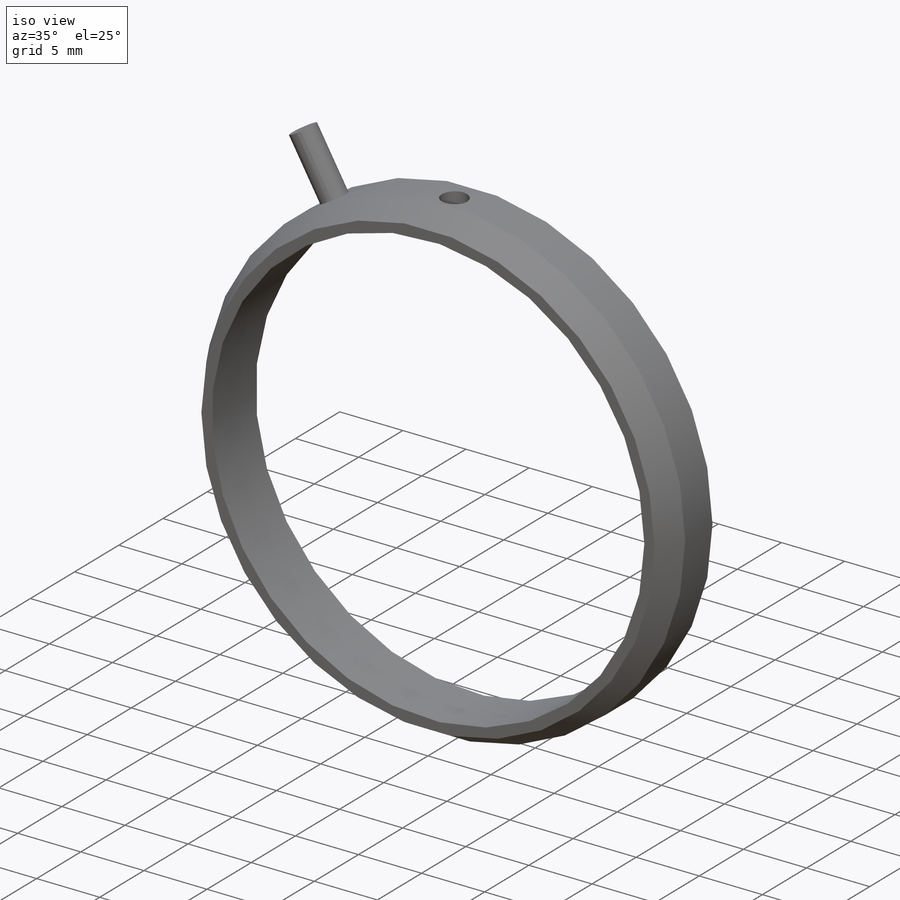
[diagram: iso view]
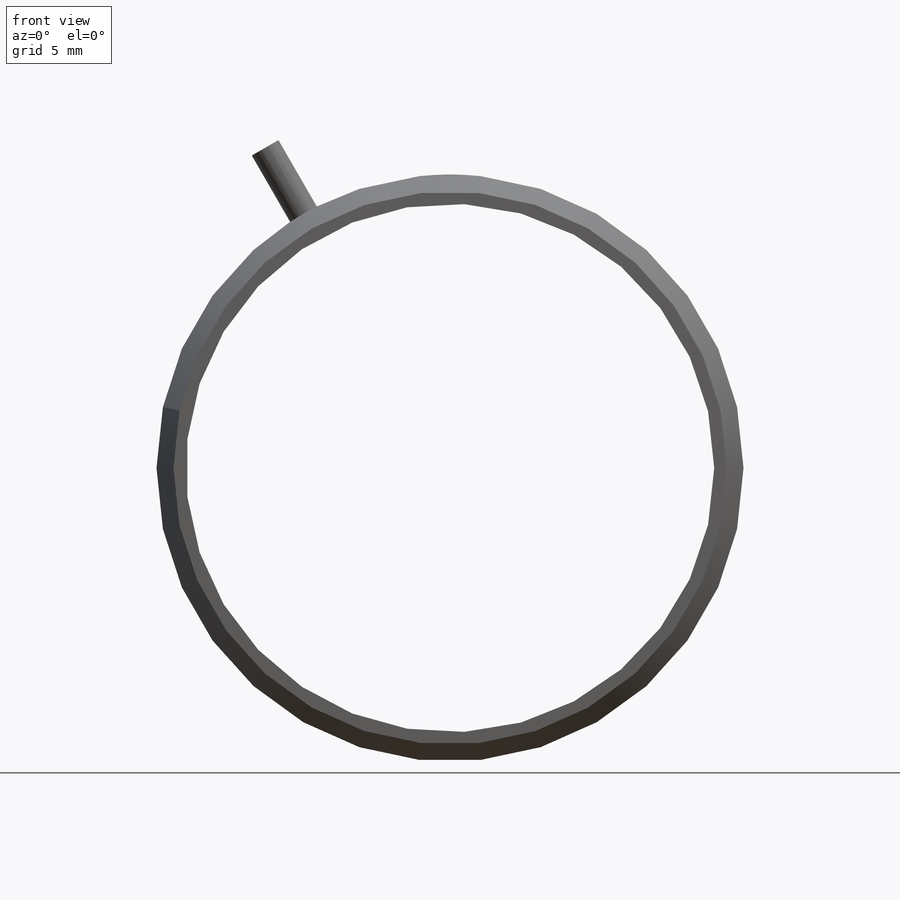
[diagram: front view]
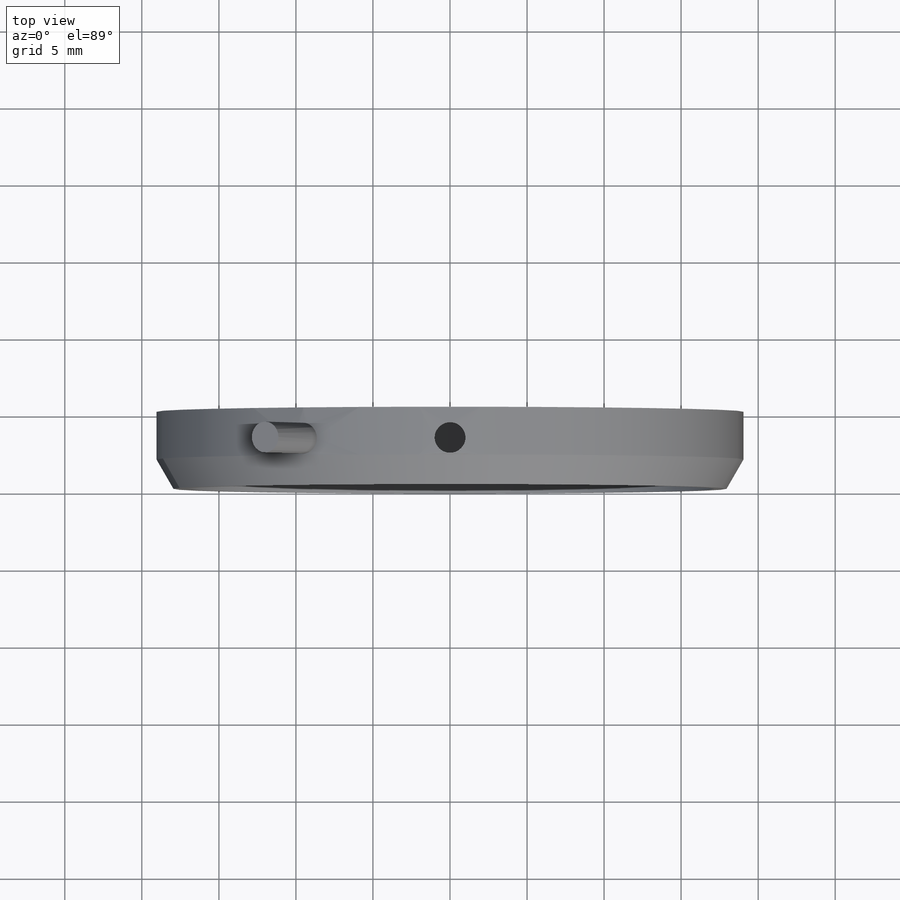
[diagram: top view]
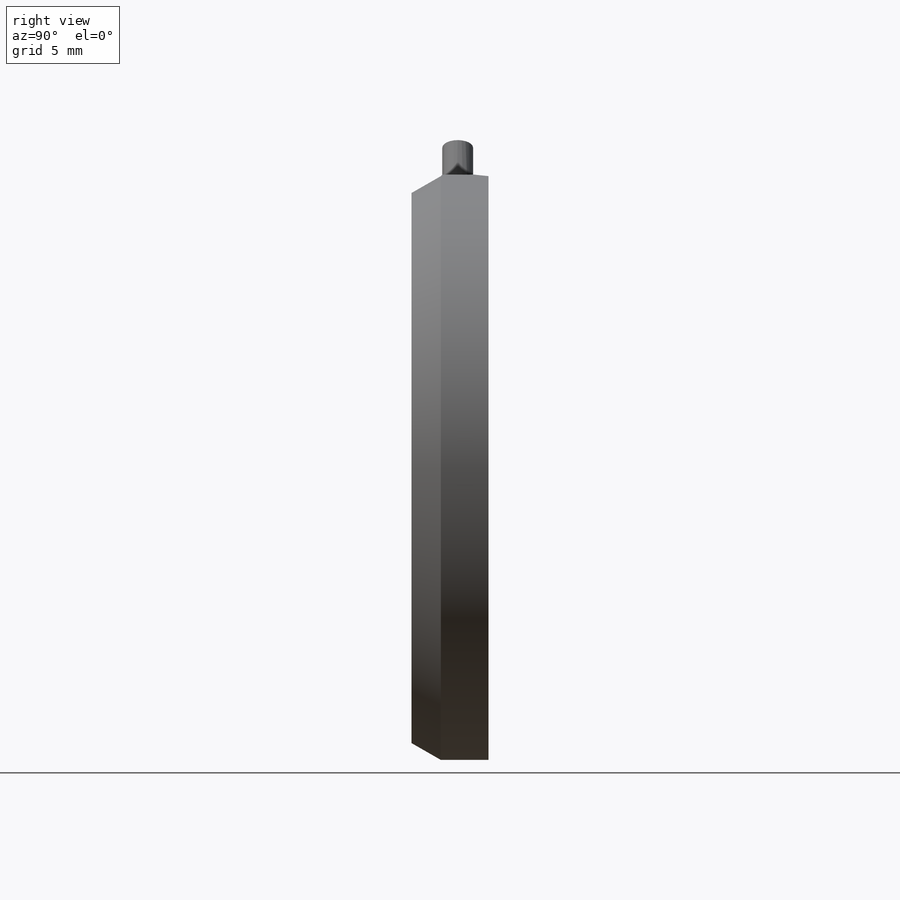
[diagram: right view]
SOLIDWORKS PART (.sldprt)
format: sldprt  version: not decoded by parser v0  size: 154,112 bytes
history: native  units: mm
features: sketch x4, cut_extrude x2, material x1, extrude x1, chamfer x1, plane x1 (+13 scaffold rows collapsed)
feature tree (23):
  scaffold x13  (default folders/planes/origin — collapsed)
  material  "Material <not specified>"
  sketch  "Sketch1"  dims[c1.D1=~55.786769mm c1.D2=38.1mm c2.D1=1.9mm]
  extrude  "Boss-Extrude1"  Depth=5mm
  chamfer  "Chamfer1"  Distance=1.905mm Angle=30deg
  plane  "Plane1"  Offset=2mm
  sketch  "Sketch4"  dims[c1.D1=19.05mm c2.D1=30.0deg c3.D1=24.0mm c3.D2=0.0mm c4.D1=360.0deg c4.D3=1.0mm c4.D4=1.0mm]
  sketch  "Sketch2"  dims[c1.D1=~1.361494mm c1.D2=2.0mm c2.D1=2.0mm c2.D2=~1.206581mm]
  cut_extrude  "Cut-Extrude1"  Depth=30mm
  sketch  "Sketch5"  dims[D1=34.3mm]
  cut_extrude  "Cut-Extrude2"  Depth=15mm
decode coverage: 8 of 8 modeling features carry decoded parameters
note: ~ marks probable driven/reference dimensions
note: suppression state not decoded; provenance and decode notes live in map.json
